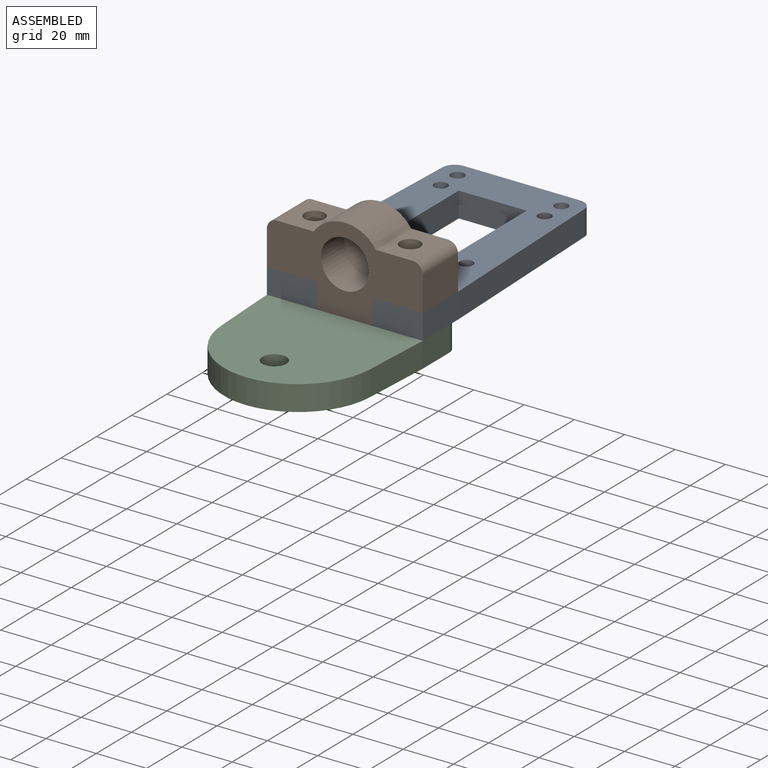
[diagram: assembled view]
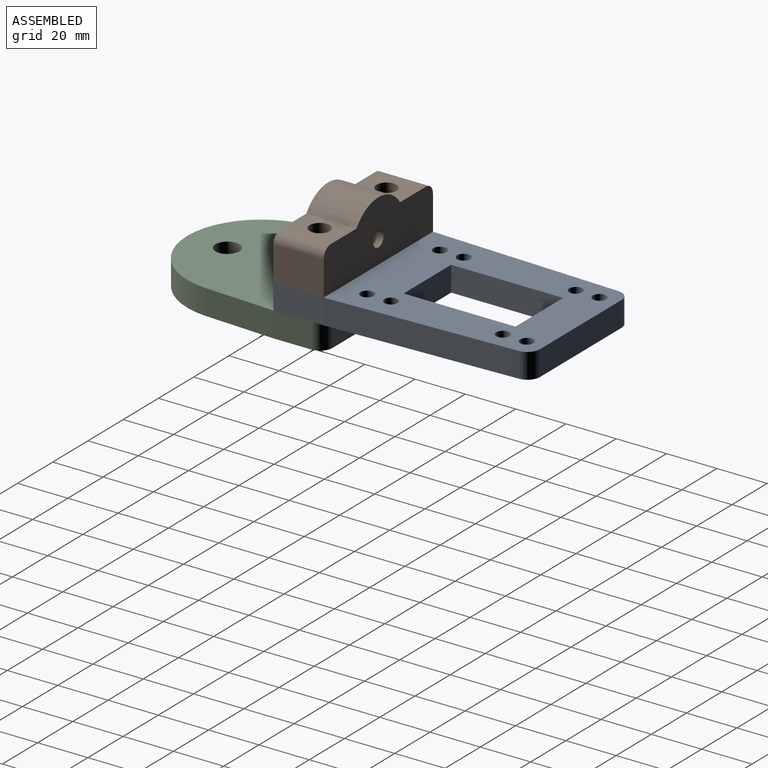
[diagram: assembled view, second angle]
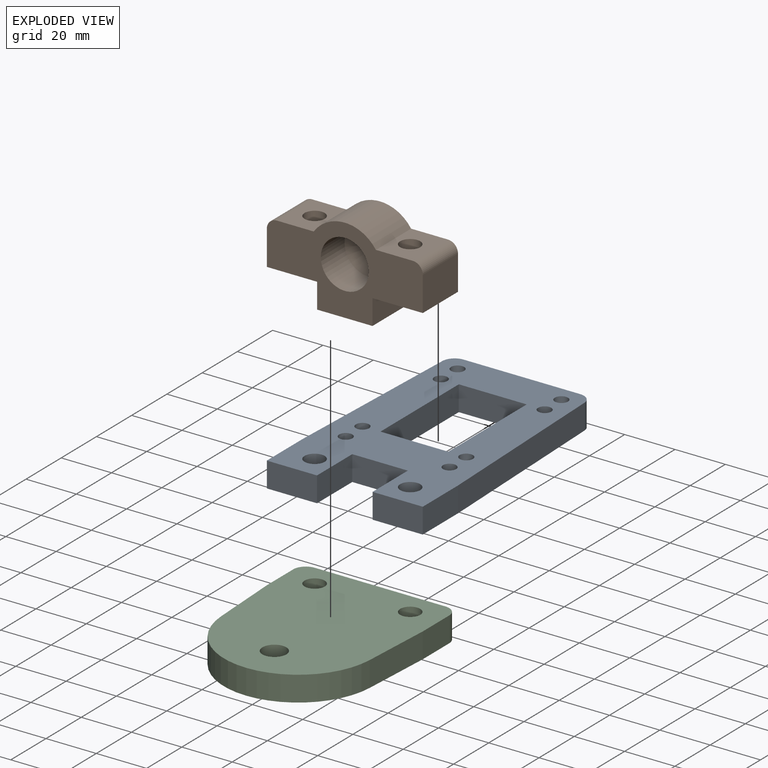
[diagram: exploded view]
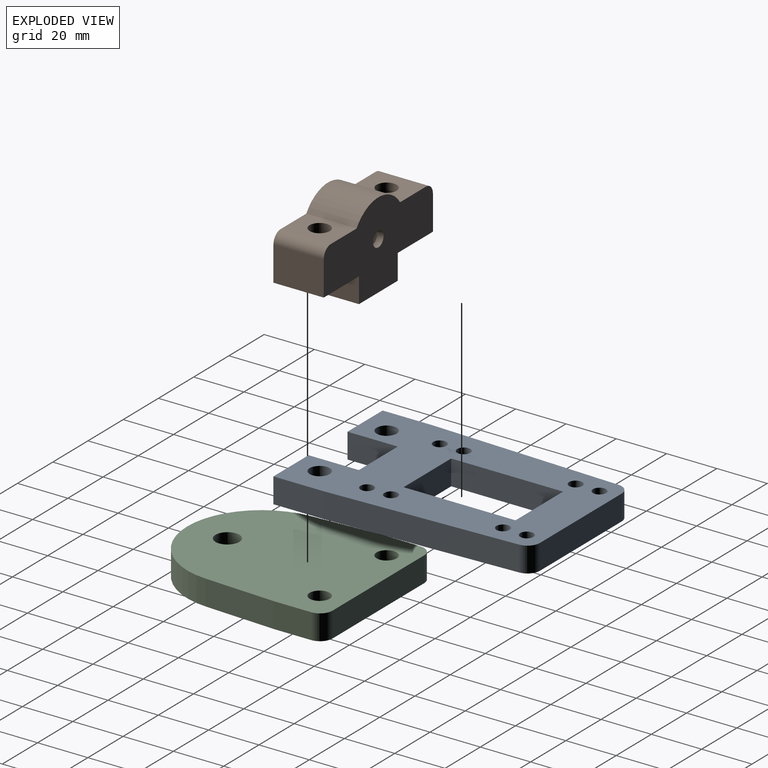
[diagram: exploded view, second angle]
ASSEMBLY  parts=3 mates=2
PART A: 28 faces, bbox 62x100.5x10 mm
  f0: plane 75.69x10mm, normal (1,0.04,0), area 757.4mm2, adj f13,f14,f15,f27
  f1: plane 46.37x10mm, normal (0,1,0), area 463.7mm2, adj f14,f15,f26,f27
  f2: plane 75.69x10mm, normal (-1,0.04,0), area 757.4mm2, adj f3,f14,f15,f26
  f3: plane 20x10mm, normal (-1,0,0), area 200mm2, adj f2,f4,f14,f15
  f4: plane 19.95x10mm, normal (0,-1,0), area 199.5mm2, adj f3,f5,f14,f15
  f5: plane 20x10mm, normal (1,0,0), area 200mm2, adj f4,f6,f14,f15
  f6: plane 22.1x10mm, normal (0,-1,0), area 221mm2, adj f5,f7,f14,f15
  f7: plane 20x10mm, normal (-1,0,0), area 200mm2, adj f6,f8,f14,f15
  f8: plane 19.95x10mm, normal (0,-1,0), area 199.5mm2, adj f7,f13,f14,f15
  f9: plane 27x10mm, normal (0,-1,0), area 270mm2, adj f10,f12,f14,f15
  f10: plane 44.5x10mm, normal (-1,0,0), area 445mm2, adj f9,f11,f14,f15
  f11: plane 27x10mm, normal (0,1,0), area 270mm2, adj f10,f12,f14,f15
  f12: plane 44.5x10mm, normal (1,0,0), area 445mm2, adj f9,f11,f14,f15
  f13: plane 20x10mm, normal (1,0,0), area 200mm2, adj f0,f8,f14,f15
  f14: plane 100.5x62mm, normal (0,0,1), area 4062.5mm2, adj f0,f1,f2,f3,f4,f5,f6,f7
  f15: plane 100.5x62mm, normal (0,0,-1), area 4062.5mm2, adj f0,f1,f2,f3,f4,f5,f6,f7
  f16: cylinder r=2.62mm len=10mm, axis (0,0,-1), area 164.9mm2, adj f14,f15
  f17: cylinder r=2.62mm len=10mm, axis (0,0,-1), area 164.9mm2, adj f14,f15
  f18: cylinder r=2.62mm len=10mm, axis (0,0,-1), area 164.9mm2, adj f14,f15
  f19: cylinder r=2.62mm len=10mm, axis (0,0,-1), area 164.9mm2, adj f14,f15
  f20: cylinder r=2.62mm len=10mm, axis (0,0,-1), area 164.9mm2, adj f14,f15
  f21: cylinder r=2.62mm len=10mm, axis (0,0,-1), area 164.9mm2, adj f14,f15
  f22: cylinder r=2.62mm len=10mm, axis (0,0,-1), area 164.9mm2, adj f14,f15
  f23: cylinder r=2.62mm len=10mm, axis (0,0,-1), area 164.9mm2, adj f14,f15
  f24: cylinder r=4mm len=10mm, axis (0,0,-1), area 251.3mm2, adj f14,f15
  f25: cylinder r=4mm len=10mm, axis (0,0,-1), area 251.3mm2, adj f14,f15
  f26: cylinder r=5mm len=10mm, axis (0,0,1), area 76.7mm2, adj f1,f2,f14,f15
  f27: cylinder r=5mm len=10mm, axis (0,0,-1), area 76.7mm2, adj f0,f1,f14,f15
PART B: 19 faces, bbox 62x34.2x20 mm
  f0: cylinder r=3mm len=6mm, axis (0,0,1), area 48.3mm2, adj f11,f18
  f1: cylinder r=15mm len=24.72mm, axis (0,0,1), area 581mm2, adj f2,f10,f11,f12
  f2: plane 20x14.64mm, normal (0,1,0), area 242.6mm2, adj f1,f11,f12,f13,f15
  f3: plane 20x13.7mm, normal (-1,0,0), area 274mm2, adj f4,f11,f12,f15
  f4: plane 20x20mm, normal (0,-1,0), area 349.7mm2, adj f3,f5,f11,f12,f13
  f5: plane 20x10mm, normal (-1,0,0), area 200mm2, adj f4,f6,f11,f12
  f6: plane 22x20mm, normal (0,-1,0), area 440mm2, adj f5,f7,f11,f12
  f7: plane 20x10mm, normal (1,0,0), area 200mm2, adj f6,f8,f11,f12
  f8: plane 20x20mm, normal (0,-1,0), area 349.7mm2, adj f7,f9,f11,f12,f14
  f9: plane 20x13.7mm, normal (1,0,0), area 274mm2, adj f8,f11,f12,f16
  f10: plane 20x14.64mm, normal (0,1,0), area 242.6mm2, adj f1,f11,f12,f14,f16
  f11: plane 62x34.2mm, normal (0,0,-1), area 1395.1mm2, adj f0,f1,f2,f3,f4,f5,f6,f7
  f12: plane 62x34.2mm, normal (0,0,1), area 1136.8mm2, adj f1,f2,f3,f4,f5,f6,f7,f8
  f13: cylinder r=4mm len=17.7mm, axis (0,1,0), area 444.8mm2, adj f2,f4
  f14: cylinder r=4mm len=17.7mm, axis (0,1,0), area 444.8mm2, adj f8,f10
  f15: cylinder r=4mm len=20mm, axis (0,0,-1), area 125.7mm2, adj f2,f3,f11,f12
  f16: cylinder r=4mm len=20mm, axis (0,0,1), area 125.7mm2, adj f9,f10,f11,f12
  f17: cylinder r=9.55mm len=19.1mm, axis (0,0,1), area 810.1mm2, adj f12,f18
  f18: cone r=0mm half-angle=59deg, axis (0,0,1), area 301.3mm2, adj f0,f17
PART C: 14 faces, bbox 62x76x10 mm
  f0: plane 28.01x10mm, normal (1,-0.05,0), area 280.5mm2, adj f1,f5,f6,f8
  f1: plane 15x10mm, normal (1,0,0), area 150mm2, adj f0,f5,f6,f11
  f2: plane 52x10mm, normal (0,1,0), area 520mm2, adj f5,f6,f10,f11
  f3: plane 15x10mm, normal (-1,0,0), area 150mm2, adj f4,f5,f6,f10
  f4: plane 28.01x10mm, normal (-1,-0.05,0), area 280.5mm2, adj f3,f5,f6,f9
  f5: plane 76x62mm, normal (0,0,-1), area 4030.4mm2, adj f0,f1,f2,f3,f4,f7,f8,f9
  f6: plane 76x62mm, normal (0,0,1), area 4030.4mm2, adj f0,f1,f2,f3,f4,f7,f8,f9
  f7: cylinder r=4.76mm len=10mm, axis (0,0,1), area 299.2mm2, adj f5,f6
  f8: cylinder r=29.58mm len=29.5mm, axis (0,0,1), area 448.4mm2, adj f0,f5,f6,f9
  f9: cylinder r=29.58mm len=29.5mm, axis (0,0,-1), area 448.4mm2, adj f4,f5,f6,f8
  f10: cylinder r=5mm len=10mm, axis (0,0,1), area 78.5mm2, adj f2,f3,f5,f6
  f11: cylinder r=5mm len=10mm, axis (0,0,-1), area 78.5mm2, adj f1,f2,f5,f6
  f12: cylinder r=4mm len=10mm, axis (0,0,1), area 251.3mm2, adj f5,f6
  f13: cylinder r=4mm len=10mm, axis (0,0,1), area 251.3mm2, adj f5,f6
PLACE A t=(-2.32,46.09,-43.6)mm
PLACE B rot(axis=(1,0,0),90deg) t=(-2.32,-4.16,-34)mm
PLACE C t=(-2.32,-22.16,-43.6)mm
MATE fastened B.f13 <-> A.f24  axis (0,0,-1) through (-21.32,5.84,-33.6)mm
MATE fastened C.f13 <-> A.f25  axis (0,0,1) through (16.68,5.84,-43.6)mm
